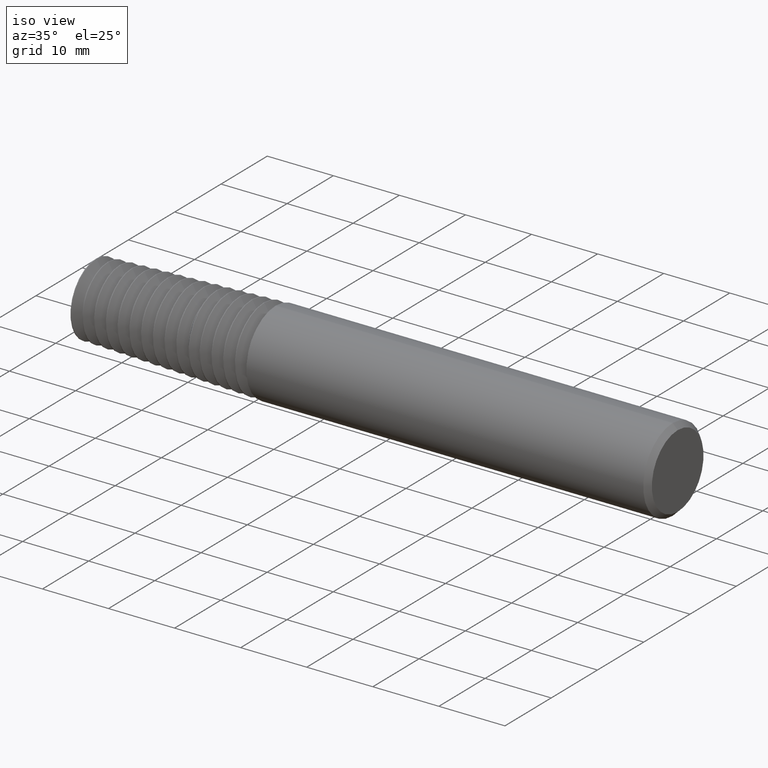
[diagram: clean part render]
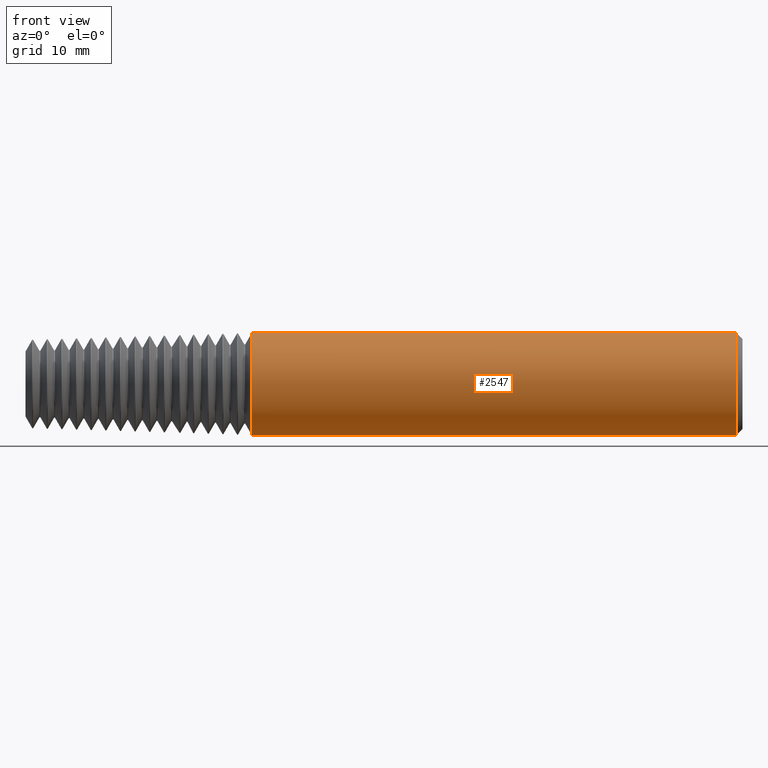
[diagram: tour spotlight — one face highlighted and labeled with its STEP entity id]
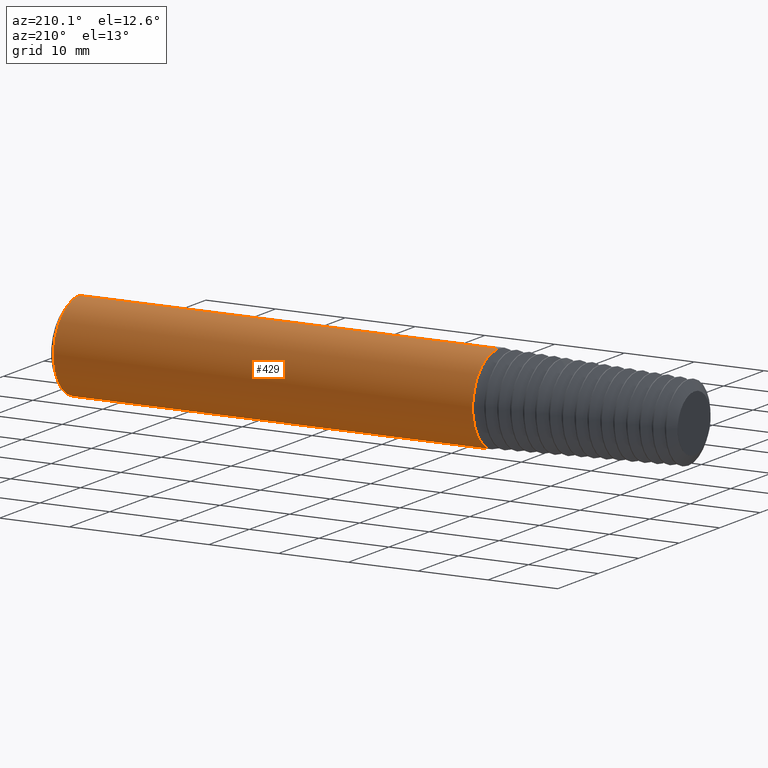
[diagram: tour spotlight — one face highlighted and labeled with its STEP entity id]
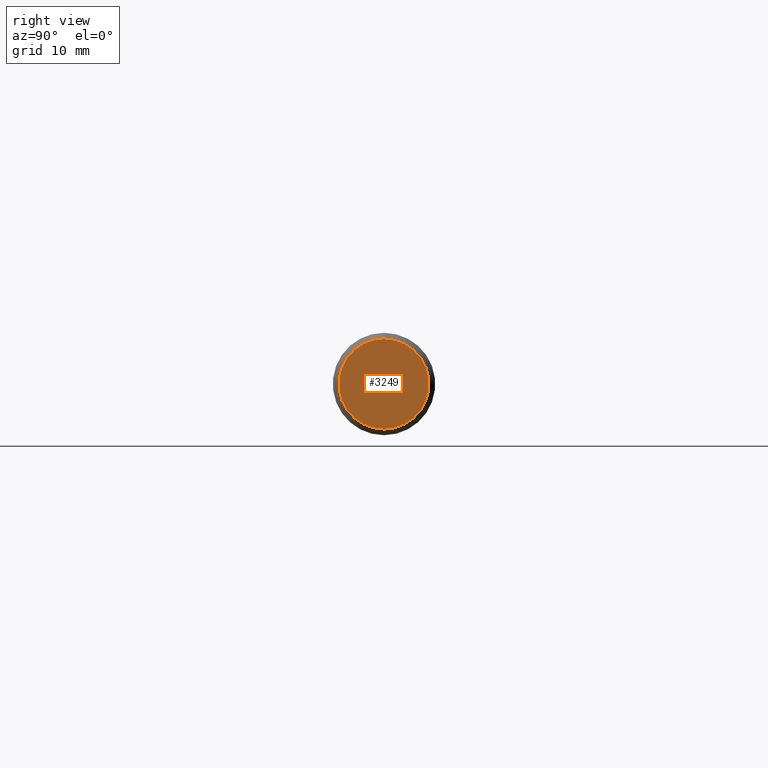
[diagram: tour spotlight — one face highlighted and labeled with its STEP entity id]
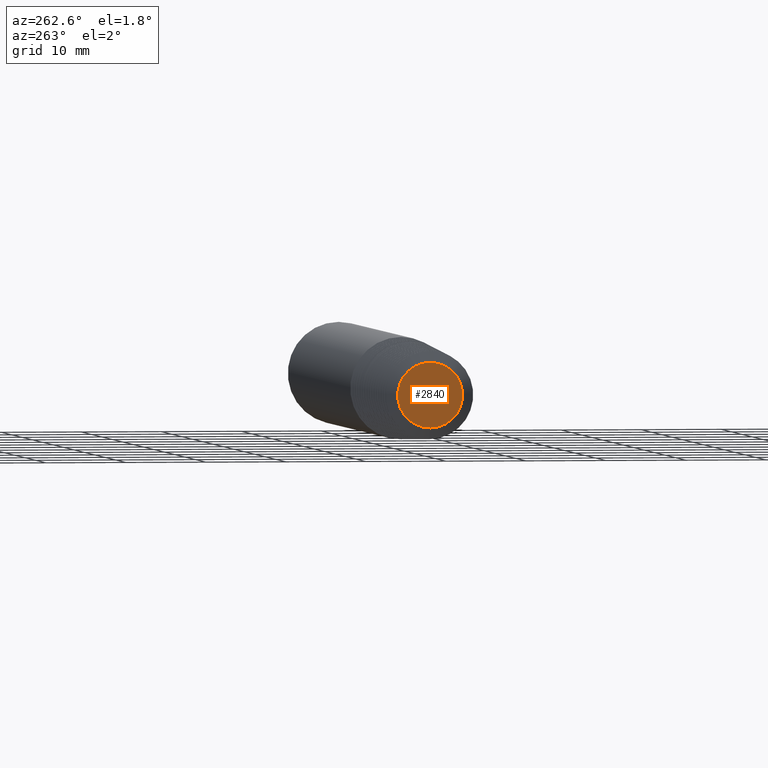
[diagram: tour spotlight — one face highlighted and labeled with its STEP entity id]
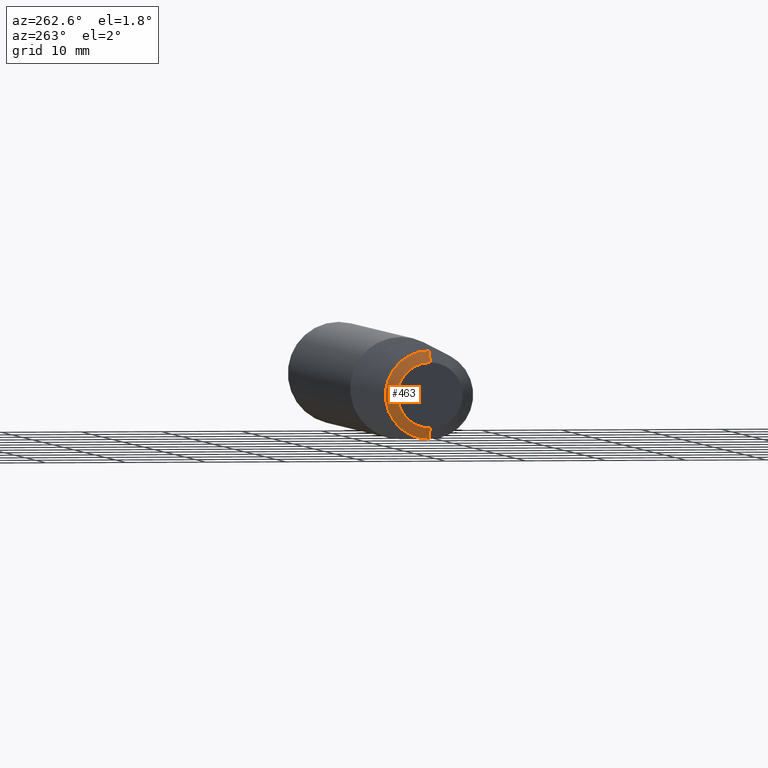
[diagram: tour spotlight — one face highlighted and labeled with its STEP entity id]
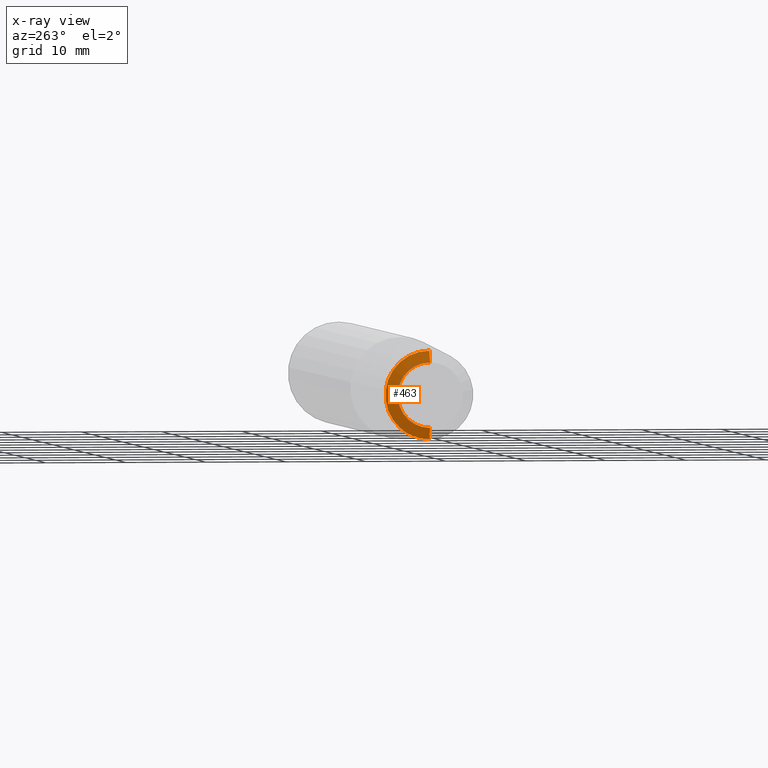
[diagram: x-ray of the same camera — body ghosted, this tour face saturated]
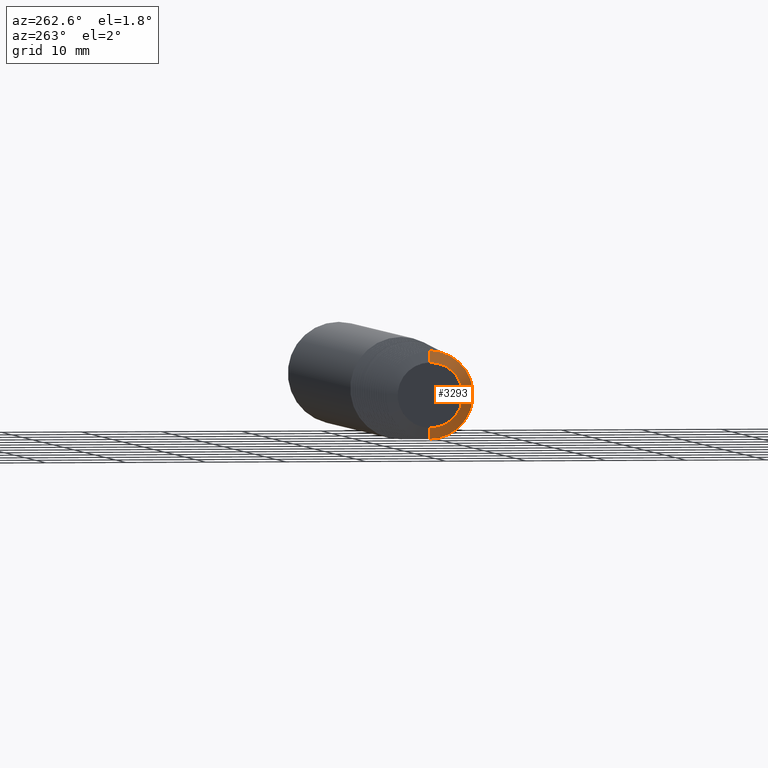
[diagram: tour spotlight — one face highlighted and labeled with its STEP entity id]
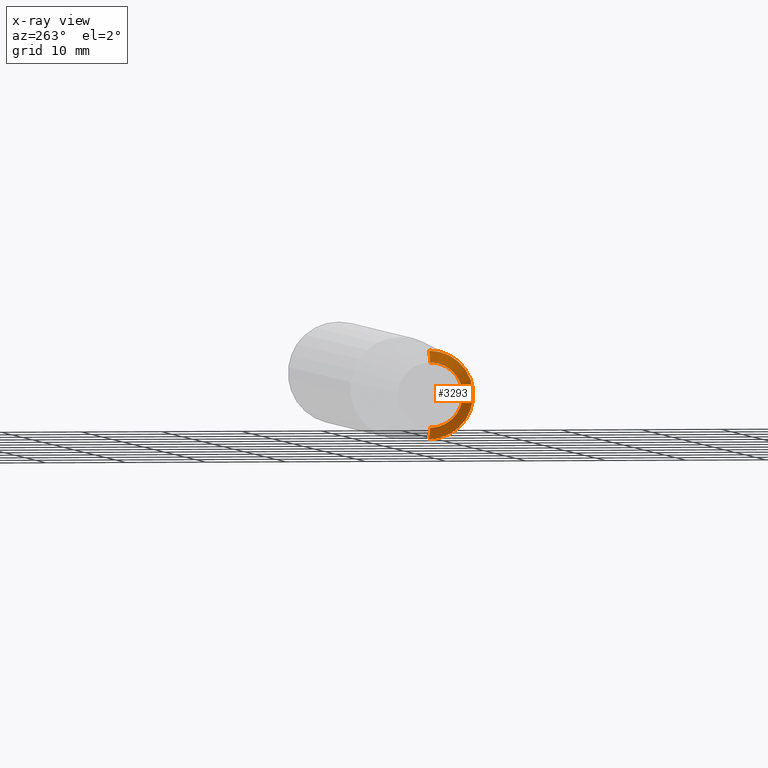
[diagram: x-ray of the same camera — body ghosted, this tour face saturated]
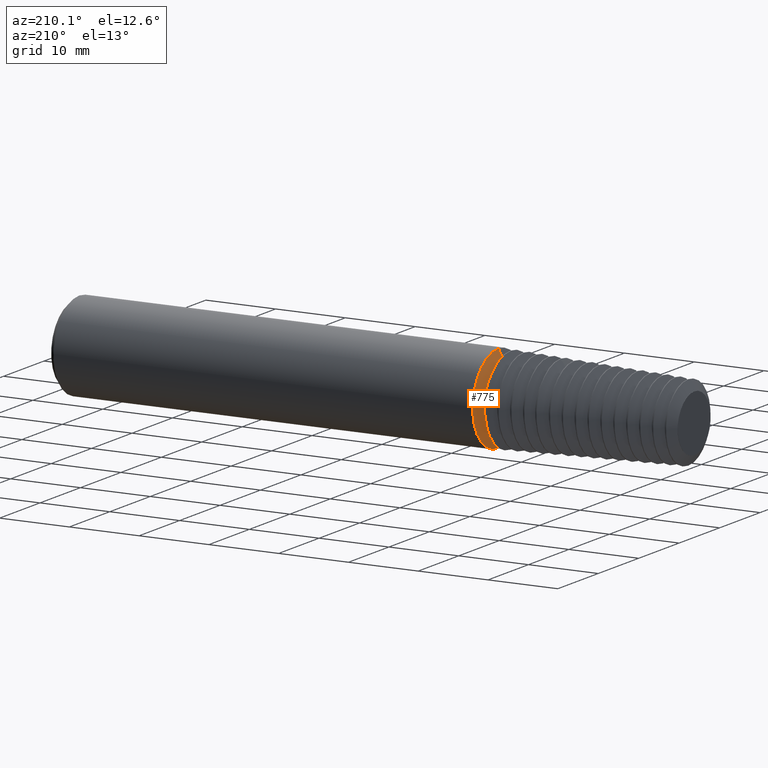
[diagram: tour spotlight — one face highlighted and labeled with its STEP entity id]
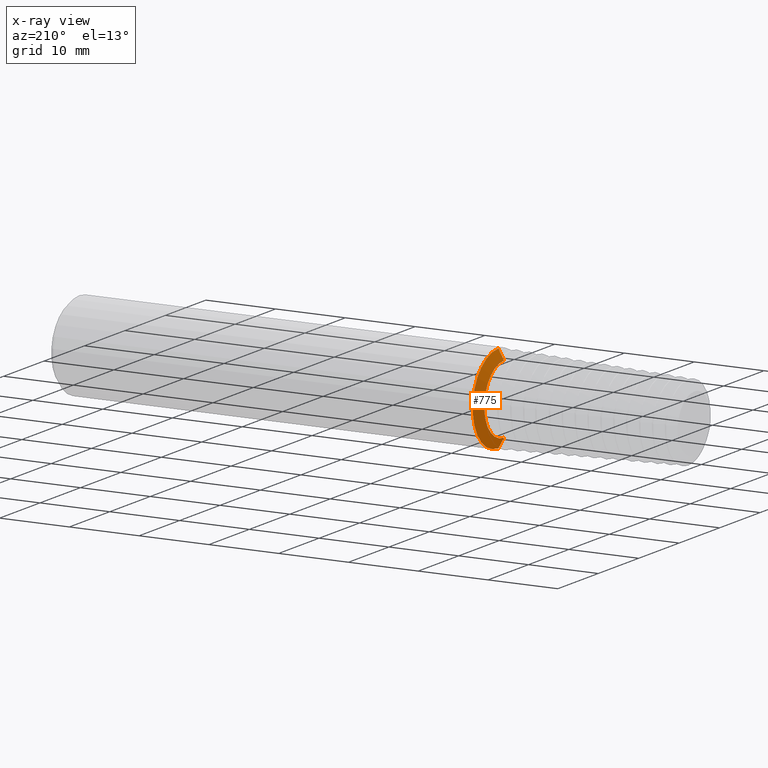
[diagram: x-ray of the same camera — body ghosted, this tour face saturated]
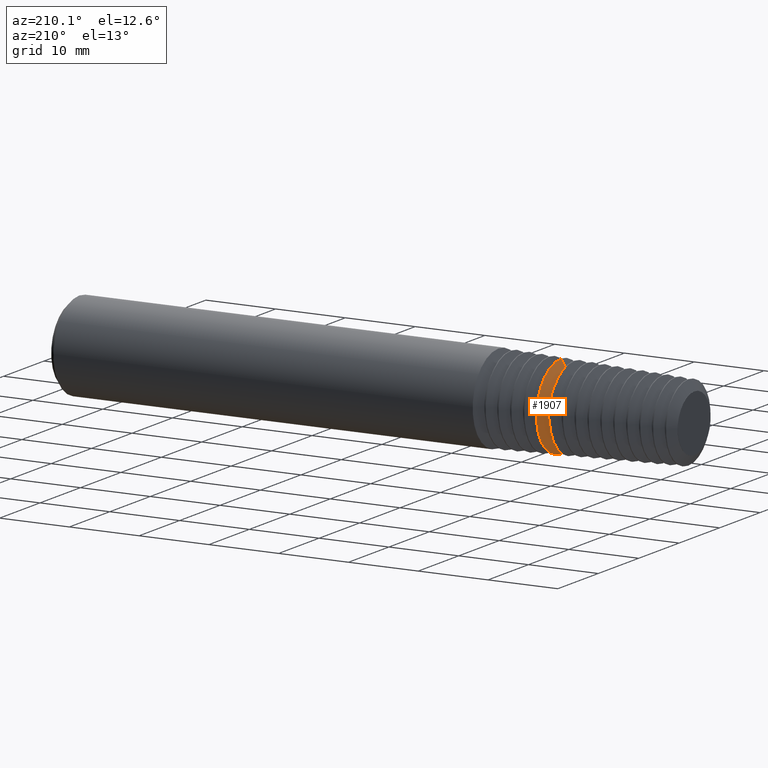
[diagram: tour spotlight — one face highlighted and labeled with its STEP entity id]
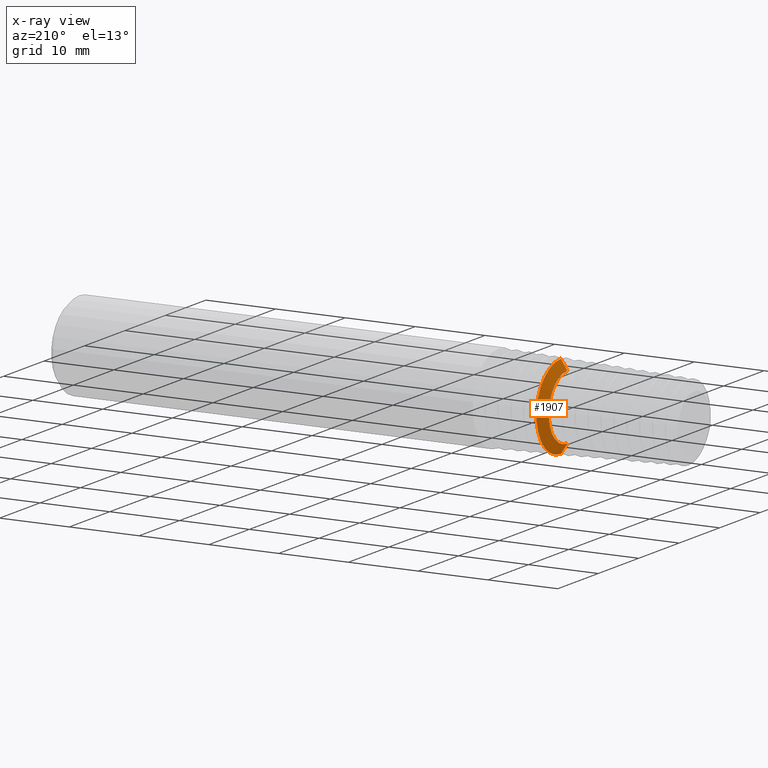
[diagram: x-ray of the same camera — body ghosted, this tour face saturated]
A machine part: a face-by-face anatomy tour. The part has 130 B-rep faces; the first image is the clean iso view, then the 8 largest visible faces are spotlighted one at a time (largest first), each with its STEP entity span.

Face 1 — front view, entity #2547. In plain terms, the highlighted cylindrical surface (partial cylindrical patch) has radius 6.3462 mm, axis along (-1, -0, -0).
Definition (entity closure, byte-faithful):
#53 = VERTEX_POINT ( 'NONE', #2348 ) ;
#62 = ORIENTED_EDGE ( 'NONE', *, *, #1250, .T. ) ;
#73 = VECTOR ( 'NONE', #1903, 39.37007874015748143 ) ;
#103 = CARTESIAN_POINT ( 'NONE',  ( 0.0000000000000000000, 3.059780027669661931E-17, -0.2498499999999999888 ) ) ;
#188 = EDGE_CURVE ( 'NONE', #664, #220, #2624, .T. ) ;
#220 = VERTEX_POINT ( 'NONE', #2158 ) ;
#290 = LINE ( 'NONE', #804, #2235 ) ;
#295 = ORIENTED_EDGE ( 'NONE', *, *, #2680, .T. ) ;
#499 = ORIENTED_EDGE ( 'NONE', *, *, #188, .F. ) ;
#539 = DIRECTION ( 'NONE',  ( 0.0000000000000000000, 0.0000000000000000000, 1.000000000000000000 ) ) ;
#653 = CIRCLE ( 'NONE', #2630, 0.2498499999999999888 ) ;
#664 = VERTEX_POINT ( 'NONE', #1912 ) ;
#781 = AXIS2_PLACEMENT_3D ( 'NONE', #3117, #2596, #539 ) ;
#804 = CARTESIAN_POINT ( 'NONE',  ( 0.0000000000000000000, 0.0000000000000000000, 0.2498499999999999888 ) ) ;
#971 = EDGE_LOOP ( 'NONE', ( #499, #62, #295, #994 ) ) ;
#994 = ORIENTED_EDGE ( 'NONE', *, *, #2898, .T. ) ;
#1115 = CARTESIAN_POINT ( 'NONE',  ( 2.495000000000000551, 0.0000000000000000000, 0.2498499999999999888 ) ) ;
#1169 = DIRECTION ( 'NONE',  ( 0.0000000000000000000, 0.0000000000000000000, -1.000000000000000000 ) ) ;
#1175 = AXIS2_PLACEMENT_3D ( 'NONE', #1463, #1216, #3250 ) ;
#1216 = DIRECTION ( 'NONE',  ( 1.000000000000000000, -0.0000000000000000000, -0.0000000000000000000 ) ) ;
#1250 = EDGE_CURVE ( 'NONE', #664, #1598, #653, .T. ) ;
#1463 = CARTESIAN_POINT ( 'NONE',  ( 0.1298227692868461070, 0.0000000000000000000, 0.0000000000000000000 ) ) ;
#1598 = VERTEX_POINT ( 'NONE', #1115 ) ;
#1802 = CYLINDRICAL_SURFACE ( 'NONE', #781, 0.2498499999999999888 ) ;
#1841 = DIRECTION ( 'NONE',  ( -1.000000000000000000, -0.0000000000000000000, -0.0000000000000000000 ) ) ;
#1903 = DIRECTION ( 'NONE',  ( -1.000000000000000000, -0.0000000000000000000, -0.0000000000000000000 ) ) ;
#1912 = CARTESIAN_POINT ( 'NONE',  ( 2.495000000000000551, 3.059780027669661931E-17, -0.2498499999999999888 ) ) ;
#1955 = FACE_OUTER_BOUND ( 'NONE', #971, .T. ) ;
#2158 = CARTESIAN_POINT ( 'NONE',  ( 0.1298227692868461070, 3.059780027669661931E-17, -0.2498499999999999888 ) ) ;
#2235 = VECTOR ( 'NONE', #1841, 39.37007874015748143 ) ;
#2348 = CARTESIAN_POINT ( 'NONE',  ( 0.1298227692868461070, 0.0000000000000000000, 0.2498499999999999888 ) ) ;
#2445 = CARTESIAN_POINT ( 'NONE',  ( 2.495000000000000551, 0.0000000000000000000, 0.0000000000000000000 ) ) ;
#2466 = DIRECTION ( 'NONE',  ( -1.000000000000000000, -0.0000000000000000000, -0.0000000000000000000 ) ) ;
#2547 = ADVANCED_FACE ( 'NONE', ( #1955 ), #1802, .T. ) ;
#2596 = DIRECTION ( 'NONE',  ( -1.000000000000000000, -0.0000000000000000000, -0.0000000000000000000 ) ) ;
#2624 = LINE ( 'NONE', #103, #73 ) ;
#2630 = AXIS2_PLACEMENT_3D ( 'NONE', #2445, #2466, #1169 ) ;
#2680 = EDGE_CURVE ( 'NONE', #1598, #53, #290, .T. ) ;
#2871 = CIRCLE ( 'NONE', #1175, 0.2498499999999999888 ) ;
#2898 = EDGE_CURVE ( 'NONE', #53, #220, #2871, .T. ) ;
#3117 = CARTESIAN_POINT ( 'NONE',  ( 0.0000000000000000000, 0.0000000000000000000, 0.0000000000000000000 ) ) ;
#3250 = DIRECTION ( 'NONE',  ( 0.0000000000000000000, 0.0000000000000000000, -1.000000000000000000 ) ) ;

Face 2 — auxiliary view, entity #429. In plain terms, the highlighted cylindrical surface (partial cylindrical patch) has radius 6.3462 mm, axis along (-1, -0, -0).
Definition (entity closure, byte-faithful):
#53 = VERTEX_POINT ( 'NONE', #2348 ) ;
#54 = DIRECTION ( 'NONE',  ( 1.000000000000000000, -0.0000000000000000000, -0.0000000000000000000 ) ) ;
#73 = VECTOR ( 'NONE', #1903, 39.37007874015748143 ) ;
#103 = CARTESIAN_POINT ( 'NONE',  ( 0.0000000000000000000, 3.059780027669661931E-17, -0.2498499999999999888 ) ) ;
#188 = EDGE_CURVE ( 'NONE', #664, #220, #2624, .T. ) ;
#204 = CIRCLE ( 'NONE', #616, 0.2498499999999999888 ) ;
#218 = ORIENTED_EDGE ( 'NONE', *, *, #188, .T. ) ;
#220 = VERTEX_POINT ( 'NONE', #2158 ) ;
#257 = CARTESIAN_POINT ( 'NONE',  ( 0.1298227692868461070, 0.0000000000000000000, 0.0000000000000000000 ) ) ;
#290 = LINE ( 'NONE', #804, #2235 ) ;
#316 = AXIS2_PLACEMENT_3D ( 'NONE', #257, #54, #1594 ) ;
#340 = ORIENTED_EDGE ( 'NONE', *, *, #3031, .T. ) ;
#412 = DIRECTION ( 'NONE',  ( -1.000000000000000000, -0.0000000000000000000, -0.0000000000000000000 ) ) ;
#429 = ADVANCED_FACE ( 'NONE', ( #791 ), #1385, .T. ) ;
#616 = AXIS2_PLACEMENT_3D ( 'NONE', #954, #412, #1946 ) ;
#664 = VERTEX_POINT ( 'NONE', #1912 ) ;
#791 = FACE_OUTER_BOUND ( 'NONE', #1345, .T. ) ;
#804 = CARTESIAN_POINT ( 'NONE',  ( 0.0000000000000000000, 0.0000000000000000000, 0.2498499999999999888 ) ) ;
#954 = CARTESIAN_POINT ( 'NONE',  ( 2.495000000000000551, 0.0000000000000000000, 0.0000000000000000000 ) ) ;
#1115 = CARTESIAN_POINT ( 'NONE',  ( 2.495000000000000551, 0.0000000000000000000, 0.2498499999999999888 ) ) ;
#1345 = EDGE_LOOP ( 'NONE', ( #3151, #218, #340, #1781 ) ) ;
#1385 = CYLINDRICAL_SURFACE ( 'NONE', #2443, 0.2498499999999999888 ) ;
#1425 = CIRCLE ( 'NONE', #316, 0.2498499999999999888 ) ;
#1594 = DIRECTION ( 'NONE',  ( 0.0000000000000000000, 0.0000000000000000000, -1.000000000000000000 ) ) ;
#1598 = VERTEX_POINT ( 'NONE', #1115 ) ;
#1781 = ORIENTED_EDGE ( 'NONE', *, *, #2680, .F. ) ;
#1841 = DIRECTION ( 'NONE',  ( -1.000000000000000000, -0.0000000000000000000, -0.0000000000000000000 ) ) ;
#1903 = DIRECTION ( 'NONE',  ( -1.000000000000000000, -0.0000000000000000000, -0.0000000000000000000 ) ) ;
#1912 = CARTESIAN_POINT ( 'NONE',  ( 2.495000000000000551, 3.059780027669661931E-17, -0.2498499999999999888 ) ) ;
#1946 = DIRECTION ( 'NONE',  ( 0.0000000000000000000, 0.0000000000000000000, -1.000000000000000000 ) ) ;
#2158 = CARTESIAN_POINT ( 'NONE',  ( 0.1298227692868461070, 3.059780027669661931E-17, -0.2498499999999999888 ) ) ;
#2235 = VECTOR ( 'NONE', #1841, 39.37007874015748143 ) ;
#2290 = DIRECTION ( 'NONE',  ( -1.000000000000000000, -0.0000000000000000000, -0.0000000000000000000 ) ) ;
#2317 = DIRECTION ( 'NONE',  ( 0.0000000000000000000, 0.0000000000000000000, 1.000000000000000000 ) ) ;
#2348 = CARTESIAN_POINT ( 'NONE',  ( 0.1298227692868461070, 0.0000000000000000000, 0.2498499999999999888 ) ) ;
#2357 = EDGE_CURVE ( 'NONE', #1598, #664, #204, .T. ) ;
#2443 = AXIS2_PLACEMENT_3D ( 'NONE', #2790, #2290, #2317 ) ;
#2624 = LINE ( 'NONE', #103, #73 ) ;
#2680 = EDGE_CURVE ( 'NONE', #1598, #53, #290, .T. ) ;
#2790 = CARTESIAN_POINT ( 'NONE',  ( 0.0000000000000000000, 0.0000000000000000000, 0.0000000000000000000 ) ) ;
#3031 = EDGE_CURVE ( 'NONE', #220, #53, #1425, .T. ) ;
#3151 = ORIENTED_EDGE ( 'NONE', *, *, #2357, .T. ) ;

Face 3 — right view, entity #3249. In plain terms, the highlighted planar face has unit normal (1, 0, 0).
Definition (entity closure, byte-faithful):
#259 = VERTEX_POINT ( 'NONE', #1978 ) ;
#386 = AXIS2_PLACEMENT_3D ( 'NONE', #988, #1477, #1498 ) ;
#493 = DIRECTION ( 'NONE',  ( 0.0000000000000000000, 0.0000000000000000000, -1.000000000000000000 ) ) ;
#757 = DIRECTION ( 'NONE',  ( 1.000000000000000000, 0.0000000000000000000, 0.0000000000000000000 ) ) ;
#816 = EDGE_CURVE ( 'NONE', #259, #2682, #2735, .T. ) ;
#988 = CARTESIAN_POINT ( 'NONE',  ( 2.524999999999999911, 0.0000000000000000000, 0.0000000000000000000 ) ) ;
#1065 = CARTESIAN_POINT ( 'NONE',  ( 2.524999999999999911, 2.876083007797561205E-17, -0.2198500000000003785 ) ) ;
#1223 = AXIS2_PLACEMENT_3D ( 'NONE', #2033, #3269, #3054 ) ;
#1289 = EDGE_LOOP ( 'NONE', ( #1363, #2884 ) ) ;
#1363 = ORIENTED_EDGE ( 'NONE', *, *, #816, .T. ) ;
#1477 = DIRECTION ( 'NONE',  ( 1.000000000000000000, 0.0000000000000000000, 0.0000000000000000000 ) ) ;
#1498 = DIRECTION ( 'NONE',  ( 0.0000000000000000000, 0.0000000000000000000, -1.000000000000000000 ) ) ;
#1978 = CARTESIAN_POINT ( 'NONE',  ( 2.524999999999999911, 0.0000000000000000000, 0.2198500000000003785 ) ) ;
#1996 = CIRCLE ( 'NONE', #2876, 0.2198500000000003785 ) ;
#2033 = CARTESIAN_POINT ( 'NONE',  ( 2.524999999999999911, -0.2498499999999999888, 0.0000000000000000000 ) ) ;
#2044 = FACE_OUTER_BOUND ( 'NONE', #1289, .T. ) ;
#2283 = CARTESIAN_POINT ( 'NONE',  ( 2.524999999999999911, 0.0000000000000000000, 0.0000000000000000000 ) ) ;
#2544 = PLANE ( 'NONE',  #1223 ) ;
#2682 = VERTEX_POINT ( 'NONE', #1065 ) ;
#2735 = CIRCLE ( 'NONE', #386, 0.2198500000000003785 ) ;
#2876 = AXIS2_PLACEMENT_3D ( 'NONE', #2283, #757, #493 ) ;
#2884 = ORIENTED_EDGE ( 'NONE', *, *, #2993, .T. ) ;
#2993 = EDGE_CURVE ( 'NONE', #2682, #259, #1996, .T. ) ;
#3054 = DIRECTION ( 'NONE',  ( 0.0000000000000000000, 0.0000000000000000000, -1.000000000000000000 ) ) ;
#3249 = ADVANCED_FACE ( 'NONE', ( #2044 ), #2544, .T. ) ;
#3269 = DIRECTION ( 'NONE',  ( 1.000000000000000000, 0.0000000000000000000, 0.0000000000000000000 ) ) ;

Face 4 — auxiliary view, entity #2840. In plain terms, the highlighted planar face has unit normal (1, 0, 0).
Definition (entity closure, byte-faithful):
#140 = CARTESIAN_POINT ( 'NONE',  ( -0.9749999999999999778, 0.0000000000000000000, 0.0000000000000000000 ) ) ;
#144 = DIRECTION ( 'NONE',  ( 1.000000000000000000, 0.0000000000000000000, 0.0000000000000000000 ) ) ;
#273 = AXIS2_PLACEMENT_3D ( 'NONE', #1437, #2467, #941 ) ;
#345 = ORIENTED_EDGE ( 'NONE', *, *, #1017, .F. ) ;
#415 = AXIS2_PLACEMENT_3D ( 'NONE', #140, #674, #1927 ) ;
#674 = DIRECTION ( 'NONE',  ( 1.000000000000000000, 0.0000000000000000000, 0.0000000000000000000 ) ) ;
#709 = PLANE ( 'NONE',  #273 ) ;
#861 = AXIS2_PLACEMENT_3D ( 'NONE', #2614, #144, #2859 ) ;
#941 = DIRECTION ( 'NONE',  ( 0.0000000000000000000, 0.0000000000000000000, -1.000000000000000000 ) ) ;
#973 = CIRCLE ( 'NONE', #861, 0.1599263712669248272 ) ;
#1017 = EDGE_CURVE ( 'NONE', #2789, #3004, #973, .T. ) ;
#1357 = EDGE_CURVE ( 'NONE', #3004, #2789, #2926, .T. ) ;
#1371 = EDGE_LOOP ( 'NONE', ( #345, #2535 ) ) ;
#1437 = CARTESIAN_POINT ( 'NONE',  ( -0.9749999999999999778, 0.0000000000000000000, 0.0000000000000000000 ) ) ;
#1626 = CARTESIAN_POINT ( 'NONE',  ( -0.9749999999999999778, 0.0000000000000000000, -0.1599263712669248272 ) ) ;
#1927 = DIRECTION ( 'NONE',  ( 0.0000000000000000000, 0.0000000000000000000, -1.000000000000000000 ) ) ;
#2273 = CARTESIAN_POINT ( 'NONE',  ( -0.9749999999999999778, 1.958533186712906995E-17, 0.1599263712669248272 ) ) ;
#2467 = DIRECTION ( 'NONE',  ( 1.000000000000000000, 0.0000000000000000000, 0.0000000000000000000 ) ) ;
#2535 = ORIENTED_EDGE ( 'NONE', *, *, #1357, .F. ) ;
#2614 = CARTESIAN_POINT ( 'NONE',  ( -0.9749999999999999778, 0.0000000000000000000, 0.0000000000000000000 ) ) ;
#2789 = VERTEX_POINT ( 'NONE', #1626 ) ;
#2840 = ADVANCED_FACE ( 'NONE', ( #2991 ), #709, .F. ) ;
#2859 = DIRECTION ( 'NONE',  ( 0.0000000000000000000, 0.0000000000000000000, -1.000000000000000000 ) ) ;
#2926 = CIRCLE ( 'NONE', #415, 0.1599263712669248272 ) ;
#2991 = FACE_OUTER_BOUND ( 'NONE', #1371, .T. ) ;
#3004 = VERTEX_POINT ( 'NONE', #2273 ) ;

Face 5 — auxiliary view, entity #463. An x-ray twin of the same camera follows (body ghosted, this face saturated) — the face is partly hidden behind the body. In plain terms, the highlighted conical surface has half-angle 60.2 deg.
Definition (entity closure, byte-faithful):
#50 = VECTOR ( 'NONE', #2360, 39.37007874015748143 ) ;
#132 = CARTESIAN_POINT ( 'NONE',  ( -0.9418863300302218189, 2.645237086158283233E-17, 0.2160000000000000253 ) ) ;
#138 = CARTESIAN_POINT ( 'NONE',  ( -0.9739999999999998659, 1.958533186712906995E-17, 0.1599263712669248272 ) ) ;
#151 = CIRCLE ( 'NONE', #2823, 0.2160000000000000253 ) ;
#158 = VECTOR ( 'NONE', #1660, 39.37007874015748143 ) ;
#463 = ADVANCED_FACE ( 'NONE', ( #2079 ), #637, .T. ) ;
#606 = EDGE_CURVE ( 'NONE', #1125, #1028, #151, .T. ) ;
#637 = CONICAL_SURFACE ( 'NONE', #3187, 0.2160000000000000253, 1.050688209700591180 ) ;
#730 = DIRECTION ( 'NONE',  ( 1.000000000000000000, -0.0000000000000000000, -0.0000000000000000000 ) ) ;
#1028 = VERTEX_POINT ( 'NONE', #2872 ) ;
#1042 = ORIENTED_EDGE ( 'NONE', *, *, #2796, .T. ) ;
#1053 = EDGE_CURVE ( 'NONE', #2140, #1028, #2869, .T. ) ;
#1064 = CARTESIAN_POINT ( 'NONE',  ( -0.9418863300302218189, 0.0000000000000000000, -0.2160000000000000253 ) ) ;
#1125 = VERTEX_POINT ( 'NONE', #1064 ) ;
#1228 = CARTESIAN_POINT ( 'NONE',  ( -0.9739999999999998659, 0.0000000000000000000, 0.0000000000000000000 ) ) ;
#1297 = DIRECTION ( 'NONE',  ( 0.0000000000000000000, 0.0000000000000000000, -1.000000000000000000 ) ) ;
#1298 = ORIENTED_EDGE ( 'NONE', *, *, #1962, .F. ) ;
#1423 = CARTESIAN_POINT ( 'NONE',  ( -0.9739999999999998659, 0.0000000000000000000, -0.1599263712669248272 ) ) ;
#1656 = VERTEX_POINT ( 'NONE', #1423 ) ;
#1660 = DIRECTION ( 'NONE',  ( 0.4969739610275512032, 1.062706184878912994E-16, 0.8677654533689308503 ) ) ;
#1901 = CARTESIAN_POINT ( 'NONE',  ( -0.9418863300302218189, 0.0000000000000000000, 0.0000000000000000000 ) ) ;
#1962 = EDGE_CURVE ( 'NONE', #1656, #1125, #2365, .T. ) ;
#2046 = ORIENTED_EDGE ( 'NONE', *, *, #606, .F. ) ;
#2057 = DIRECTION ( 'NONE',  ( 1.000000000000000000, -0.0000000000000000000, -0.0000000000000000000 ) ) ;
#2079 = FACE_OUTER_BOUND ( 'NONE', #2848, .T. ) ;
#2140 = VERTEX_POINT ( 'NONE', #138 ) ;
#2360 = DIRECTION ( 'NONE',  ( 0.4969739610275512032, 0.0000000000000000000, -0.8677654533689308503 ) ) ;
#2365 = LINE ( 'NONE', #3105, #50 ) ;
#2386 = DIRECTION ( 'NONE',  ( 1.000000000000000000, -0.0000000000000000000, -0.0000000000000000000 ) ) ;
#2480 = DIRECTION ( 'NONE',  ( 0.0000000000000000000, 0.0000000000000000000, -1.000000000000000000 ) ) ;
#2555 = CIRCLE ( 'NONE', #3164, 0.1599263712669248272 ) ;
#2667 = DIRECTION ( 'NONE',  ( 0.0000000000000000000, 0.0000000000000000000, -1.000000000000000000 ) ) ;
#2796 = EDGE_CURVE ( 'NONE', #1656, #2140, #2555, .T. ) ;
#2823 = AXIS2_PLACEMENT_3D ( 'NONE', #1901, #2386, #2667 ) ;
#2848 = EDGE_LOOP ( 'NONE', ( #1042, #3125, #2046, #1298 ) ) ;
#2869 = LINE ( 'NONE', #132, #158 ) ;
#2872 = CARTESIAN_POINT ( 'NONE',  ( -0.9418863300302218189, 2.645237086158283233E-17, 0.2160000000000000253 ) ) ;
#3105 = CARTESIAN_POINT ( 'NONE',  ( -0.9418863300302218189, 0.0000000000000000000, -0.2160000000000000253 ) ) ;
#3125 = ORIENTED_EDGE ( 'NONE', *, *, #1053, .T. ) ;
#3164 = AXIS2_PLACEMENT_3D ( 'NONE', #1228, #730, #2480 ) ;
#3187 = AXIS2_PLACEMENT_3D ( 'NONE', #3288, #2057, #1297 ) ;
#3288 = CARTESIAN_POINT ( 'NONE',  ( -0.9418863300302218189, 0.0000000000000000000, 0.0000000000000000000 ) ) ;

Face 6 — auxiliary view, entity #3293. An x-ray twin of the same camera follows (body ghosted, this face saturated) — the face is partly hidden behind the body. In plain terms, the highlighted conical surface has half-angle 60.2 deg.
Definition (entity closure, byte-faithful):
#8 = CARTESIAN_POINT ( 'NONE',  ( -0.9418863300302218189, 0.0000000000000000000, 0.0000000000000000000 ) ) ;
#50 = VECTOR ( 'NONE', #2360, 39.37007874015748143 ) ;
#132 = CARTESIAN_POINT ( 'NONE',  ( -0.9418863300302218189, 2.645237086158283233E-17, 0.2160000000000000253 ) ) ;
#138 = CARTESIAN_POINT ( 'NONE',  ( -0.9739999999999998659, 1.958533186712906995E-17, 0.1599263712669248272 ) ) ;
#158 = VECTOR ( 'NONE', #1660, 39.37007874015748143 ) ;
#251 = AXIS2_PLACEMENT_3D ( 'NONE', #8, #1257, #1516 ) ;
#926 = DIRECTION ( 'NONE',  ( 1.000000000000000000, -0.0000000000000000000, -0.0000000000000000000 ) ) ;
#962 = ORIENTED_EDGE ( 'NONE', *, *, #1053, .F. ) ;
#1028 = VERTEX_POINT ( 'NONE', #2872 ) ;
#1053 = EDGE_CURVE ( 'NONE', #2140, #1028, #2869, .T. ) ;
#1064 = CARTESIAN_POINT ( 'NONE',  ( -0.9418863300302218189, 0.0000000000000000000, -0.2160000000000000253 ) ) ;
#1107 = CONICAL_SURFACE ( 'NONE', #251, 0.2160000000000000253, 1.050688209700591180 ) ;
#1125 = VERTEX_POINT ( 'NONE', #1064 ) ;
#1221 = EDGE_LOOP ( 'NONE', ( #962, #2449, #1421, #2942 ) ) ;
#1257 = DIRECTION ( 'NONE',  ( 1.000000000000000000, -0.0000000000000000000, -0.0000000000000000000 ) ) ;
#1300 = EDGE_CURVE ( 'NONE', #2140, #1656, #1727, .T. ) ;
#1421 = ORIENTED_EDGE ( 'NONE', *, *, #1962, .T. ) ;
#1423 = CARTESIAN_POINT ( 'NONE',  ( -0.9739999999999998659, 0.0000000000000000000, -0.1599263712669248272 ) ) ;
#1516 = DIRECTION ( 'NONE',  ( 0.0000000000000000000, 0.0000000000000000000, -1.000000000000000000 ) ) ;
#1540 = AXIS2_PLACEMENT_3D ( 'NONE', #2455, #926, #2410 ) ;
#1656 = VERTEX_POINT ( 'NONE', #1423 ) ;
#1660 = DIRECTION ( 'NONE',  ( 0.4969739610275512032, 1.062706184878912994E-16, 0.8677654533689308503 ) ) ;
#1727 = CIRCLE ( 'NONE', #3141, 0.1599263712669248272 ) ;
#1729 = EDGE_CURVE ( 'NONE', #1028, #1125, #1806, .T. ) ;
#1737 = DIRECTION ( 'NONE',  ( 0.0000000000000000000, 0.0000000000000000000, -1.000000000000000000 ) ) ;
#1806 = CIRCLE ( 'NONE', #1540, 0.2160000000000000253 ) ;
#1962 = EDGE_CURVE ( 'NONE', #1656, #1125, #2365, .T. ) ;
#2140 = VERTEX_POINT ( 'NONE', #138 ) ;
#2264 = DIRECTION ( 'NONE',  ( 1.000000000000000000, -0.0000000000000000000, -0.0000000000000000000 ) ) ;
#2360 = DIRECTION ( 'NONE',  ( 0.4969739610275512032, 0.0000000000000000000, -0.8677654533689308503 ) ) ;
#2365 = LINE ( 'NONE', #3105, #50 ) ;
#2410 = DIRECTION ( 'NONE',  ( 0.0000000000000000000, 0.0000000000000000000, -1.000000000000000000 ) ) ;
#2449 = ORIENTED_EDGE ( 'NONE', *, *, #1300, .T. ) ;
#2455 = CARTESIAN_POINT ( 'NONE',  ( -0.9418863300302218189, 0.0000000000000000000, 0.0000000000000000000 ) ) ;
#2594 = FACE_OUTER_BOUND ( 'NONE', #1221, .T. ) ;
#2869 = LINE ( 'NONE', #132, #158 ) ;
#2872 = CARTESIAN_POINT ( 'NONE',  ( -0.9418863300302218189, 2.645237086158283233E-17, 0.2160000000000000253 ) ) ;
#2942 = ORIENTED_EDGE ( 'NONE', *, *, #1729, .F. ) ;
#3105 = CARTESIAN_POINT ( 'NONE',  ( -0.9418863300302218189, 0.0000000000000000000, -0.2160000000000000253 ) ) ;
#3141 = AXIS2_PLACEMENT_3D ( 'NONE', #3258, #2264, #1737 ) ;
#3258 = CARTESIAN_POINT ( 'NONE',  ( -0.9739999999999998659, 0.0000000000000000000, 0.0000000000000000000 ) ) ;
#3293 = ADVANCED_FACE ( 'NONE', ( #2594 ), #1107, .T. ) ;

Face 7 — auxiliary view, entity #775. An x-ray twin of the same camera follows (body ghosted, this face saturated) — the face is partly hidden behind the body. In plain terms, the highlighted conical surface has half-angle 60.258 deg.
Definition (entity closure, byte-faithful):
#53 = VERTEX_POINT ( 'NONE', #2348 ) ;
#54 = DIRECTION ( 'NONE',  ( 1.000000000000000000, -0.0000000000000000000, -0.0000000000000000000 ) ) ;
#220 = VERTEX_POINT ( 'NONE', #2158 ) ;
#257 = CARTESIAN_POINT ( 'NONE',  ( 0.1298227692868461070, 0.0000000000000000000, 0.0000000000000000000 ) ) ;
#262 = AXIS2_PLACEMENT_3D ( 'NONE', #2013, #3014, #2767 ) ;
#316 = AXIS2_PLACEMENT_3D ( 'NONE', #257, #54, #1594 ) ;
#585 = CARTESIAN_POINT ( 'NONE',  ( 0.09742857173323669906, 0.0000000000000000000, -0.1931546316964028176 ) ) ;
#640 = VECTOR ( 'NONE', #720, 39.37007874015748854 ) ;
#720 = DIRECTION ( 'NONE',  ( 0.4961025052282208025, 0.0000000000000000000, -0.8682639600411172776 ) ) ;
#735 = CIRCLE ( 'NONE', #2740, 0.1931546316964028176 ) ;
#775 = ADVANCED_FACE ( 'NONE', ( #2224 ), #858, .T. ) ;
#858 = CONICAL_SURFACE ( 'NONE', #262, 0.2848897943528684862, 1.051692173941519926 ) ;
#1054 = ORIENTED_EDGE ( 'NONE', *, *, #2621, .T. ) ;
#1056 = VERTEX_POINT ( 'NONE', #585 ) ;
#1111 = DIRECTION ( 'NONE',  ( 0.0000000000000000000, 0.0000000000000000000, -1.000000000000000000 ) ) ;
#1368 = ORIENTED_EDGE ( 'NONE', *, *, #3031, .F. ) ;
#1425 = CIRCLE ( 'NONE', #316, 0.2498499999999999888 ) ;
#1594 = DIRECTION ( 'NONE',  ( 0.0000000000000000000, 0.0000000000000000000, -1.000000000000000000 ) ) ;
#1624 = LINE ( 'NONE', #3261, #640 ) ;
#1629 = LINE ( 'NONE', #3134, #2665 ) ;
#2013 = CARTESIAN_POINT ( 'NONE',  ( 0.1498435585412066506, 0.0000000000000000000, 0.0000000000000000000 ) ) ;
#2016 = EDGE_CURVE ( 'NONE', #1056, #2839, #735, .T. ) ;
#2158 = CARTESIAN_POINT ( 'NONE',  ( 0.1298227692868461070, 3.059780027669661931E-17, -0.2498499999999999888 ) ) ;
#2159 = CARTESIAN_POINT ( 'NONE',  ( 0.09742857173323669906, 0.0000000000000000000, 0.0000000000000000000 ) ) ;
#2224 = FACE_OUTER_BOUND ( 'NONE', #3077, .T. ) ;
#2348 = CARTESIAN_POINT ( 'NONE',  ( 0.1298227692868461070, 0.0000000000000000000, 0.2498499999999999888 ) ) ;
#2407 = DIRECTION ( 'NONE',  ( 1.000000000000000000, -0.0000000000000000000, -0.0000000000000000000 ) ) ;
#2591 = ORIENTED_EDGE ( 'NONE', *, *, #2820, .F. ) ;
#2621 = EDGE_CURVE ( 'NONE', #2839, #53, #1629, .T. ) ;
#2655 = ORIENTED_EDGE ( 'NONE', *, *, #2016, .T. ) ;
#2665 = VECTOR ( 'NONE', #3110, 39.37007874015748854 ) ;
#2740 = AXIS2_PLACEMENT_3D ( 'NONE', #2159, #2407, #1111 ) ;
#2767 = DIRECTION ( 'NONE',  ( 0.0000000000000000000, 0.0000000000000000000, -1.000000000000000000 ) ) ;
#2820 = EDGE_CURVE ( 'NONE', #1056, #220, #1624, .T. ) ;
#2839 = VERTEX_POINT ( 'NONE', #2973 ) ;
#2973 = CARTESIAN_POINT ( 'NONE',  ( 0.09742857173323669906, 2.365462014474856199E-17, 0.1931546316964028176 ) ) ;
#3014 = DIRECTION ( 'NONE',  ( 1.000000000000000000, -0.0000000000000000000, -0.0000000000000000000 ) ) ;
#3031 = EDGE_CURVE ( 'NONE', #220, #53, #1425, .T. ) ;
#3077 = EDGE_LOOP ( 'NONE', ( #2655, #1054, #1368, #2591 ) ) ;
#3110 = DIRECTION ( 'NONE',  ( 0.4961025052282208025, 1.063316679479359688E-16, 0.8682639600411172776 ) ) ;
#3134 = CARTESIAN_POINT ( 'NONE',  ( 0.1498435585412066506, 3.488893747639881501E-17, 0.2848897943528684862 ) ) ;
#3261 = CARTESIAN_POINT ( 'NONE',  ( 0.1498435585412066506, 0.0000000000000000000, -0.2848897943528684862 ) ) ;

Face 8 — auxiliary view, entity #1907. An x-ray twin of the same camera follows (body ghosted, this face saturated) — the face is partly hidden behind the body. In plain terms, the highlighted conical surface has half-angle 57.246 deg.
Definition (entity closure, byte-faithful):
#7 = EDGE_LOOP ( 'NONE', ( #1570, #1606, #304, #3093 ) ) ;
#66 = CARTESIAN_POINT ( 'NONE',  ( -0.2234006157445075358, 2.919192040273461777E-17, 0.2383701196382431720 ) ) ;
#101 = DIRECTION ( 'NONE',  ( 0.0000000000000000000, 0.0000000000000000000, -1.000000000000000000 ) ) ;
#277 = CARTESIAN_POINT ( 'NONE',  ( -0.2234006157445075358, 0.0000000000000000000, 0.0000000000000000000 ) ) ;
#303 = EDGE_CURVE ( 'NONE', #2811, #2713, #1619, .T. ) ;
#304 = ORIENTED_EDGE ( 'NONE', *, *, #622, .F. ) ;
#445 = DIRECTION ( 'NONE',  ( 0.0000000000000000000, 0.0000000000000000000, -1.000000000000000000 ) ) ;
#459 = DIRECTION ( 'NONE',  ( 1.000000000000000000, -0.0000000000000000000, -0.0000000000000000000 ) ) ;
#546 = VERTEX_POINT ( 'NONE', #3122 ) ;
#549 = AXIS2_PLACEMENT_3D ( 'NONE', #2626, #2177, #101 ) ;
#622 = EDGE_CURVE ( 'NONE', #2419, #2713, #907, .T. ) ;
#907 = CIRCLE ( 'NONE', #549, 0.2383701196382431720 ) ;
#1181 = CARTESIAN_POINT ( 'NONE',  ( -0.2234006157445075358, 0.0000000000000000000, -0.2383701196382431720 ) ) ;
#1233 = CARTESIAN_POINT ( 'NONE',  ( -0.2234006157445075358, 2.919192040273461777E-17, 0.2383701196382431720 ) ) ;
#1322 = CONICAL_SURFACE ( 'NONE', #1717, 0.2383701196382431720, 0.9991310711897481989 ) ;
#1424 = EDGE_CURVE ( 'NONE', #546, #2419, #2844, .T. ) ;
#1528 = DIRECTION ( 'NONE',  ( 0.0000000000000000000, 0.0000000000000000000, -1.000000000000000000 ) ) ;
#1570 = ORIENTED_EDGE ( 'NONE', *, *, #1817, .T. ) ;
#1606 = ORIENTED_EDGE ( 'NONE', *, *, #303, .T. ) ;
#1619 = LINE ( 'NONE', #1233, #2701 ) ;
#1694 = CARTESIAN_POINT ( 'NONE',  ( -0.2234006157445075358, 0.0000000000000000000, -0.2383701196382431720 ) ) ;
#1717 = AXIS2_PLACEMENT_3D ( 'NONE', #277, #3299, #1528 ) ;
#1720 = FACE_OUTER_BOUND ( 'NONE', #7, .T. ) ;
#1817 = EDGE_CURVE ( 'NONE', #546, #2811, #2132, .T. ) ;
#1884 = AXIS2_PLACEMENT_3D ( 'NONE', #2216, #459, #445 ) ;
#1907 = ADVANCED_FACE ( 'NONE', ( #1720 ), #1322, .T. ) ;
#2132 = CIRCLE ( 'NONE', #1884, 0.1820372466514769694 ) ;
#2177 = DIRECTION ( 'NONE',  ( 1.000000000000000000, -0.0000000000000000000, -0.0000000000000000000 ) ) ;
#2216 = CARTESIAN_POINT ( 'NONE',  ( -0.2596407063316165109, 0.0000000000000000000, 0.0000000000000000000 ) ) ;
#2249 = VECTOR ( 'NONE', #2694, 39.37007874015748143 ) ;
#2419 = VERTEX_POINT ( 'NONE', #1181 ) ;
#2626 = CARTESIAN_POINT ( 'NONE',  ( -0.2234006157445075358, 0.0000000000000000000, 0.0000000000000000000 ) ) ;
#2694 = DIRECTION ( 'NONE',  ( 0.5410332801836409411, 0.0000000000000000000, -0.8410011829562011876 ) ) ;
#2701 = VECTOR ( 'NONE', #3005, 39.37007874015748143 ) ;
#2713 = VERTEX_POINT ( 'NONE', #66 ) ;
#2811 = VERTEX_POINT ( 'NONE', #3229 ) ;
#2844 = LINE ( 'NONE', #1694, #2249 ) ;
#3005 = DIRECTION ( 'NONE',  ( 0.5410332801836409411, 1.029929406786449315E-16, 0.8410011829562011876 ) ) ;
#3093 = ORIENTED_EDGE ( 'NONE', *, *, #1424, .F. ) ;
#3122 = CARTESIAN_POINT ( 'NONE',  ( -0.2596407063316165109, 0.0000000000000000000, -0.1820372466514769694 ) ) ;
#3229 = CARTESIAN_POINT ( 'NONE',  ( -0.2596407063316165109, 2.229313314373285251E-17, 0.1820372466514769694 ) ) ;
#3299 = DIRECTION ( 'NONE',  ( 1.000000000000000000, -0.0000000000000000000, -0.0000000000000000000 ) ) ;